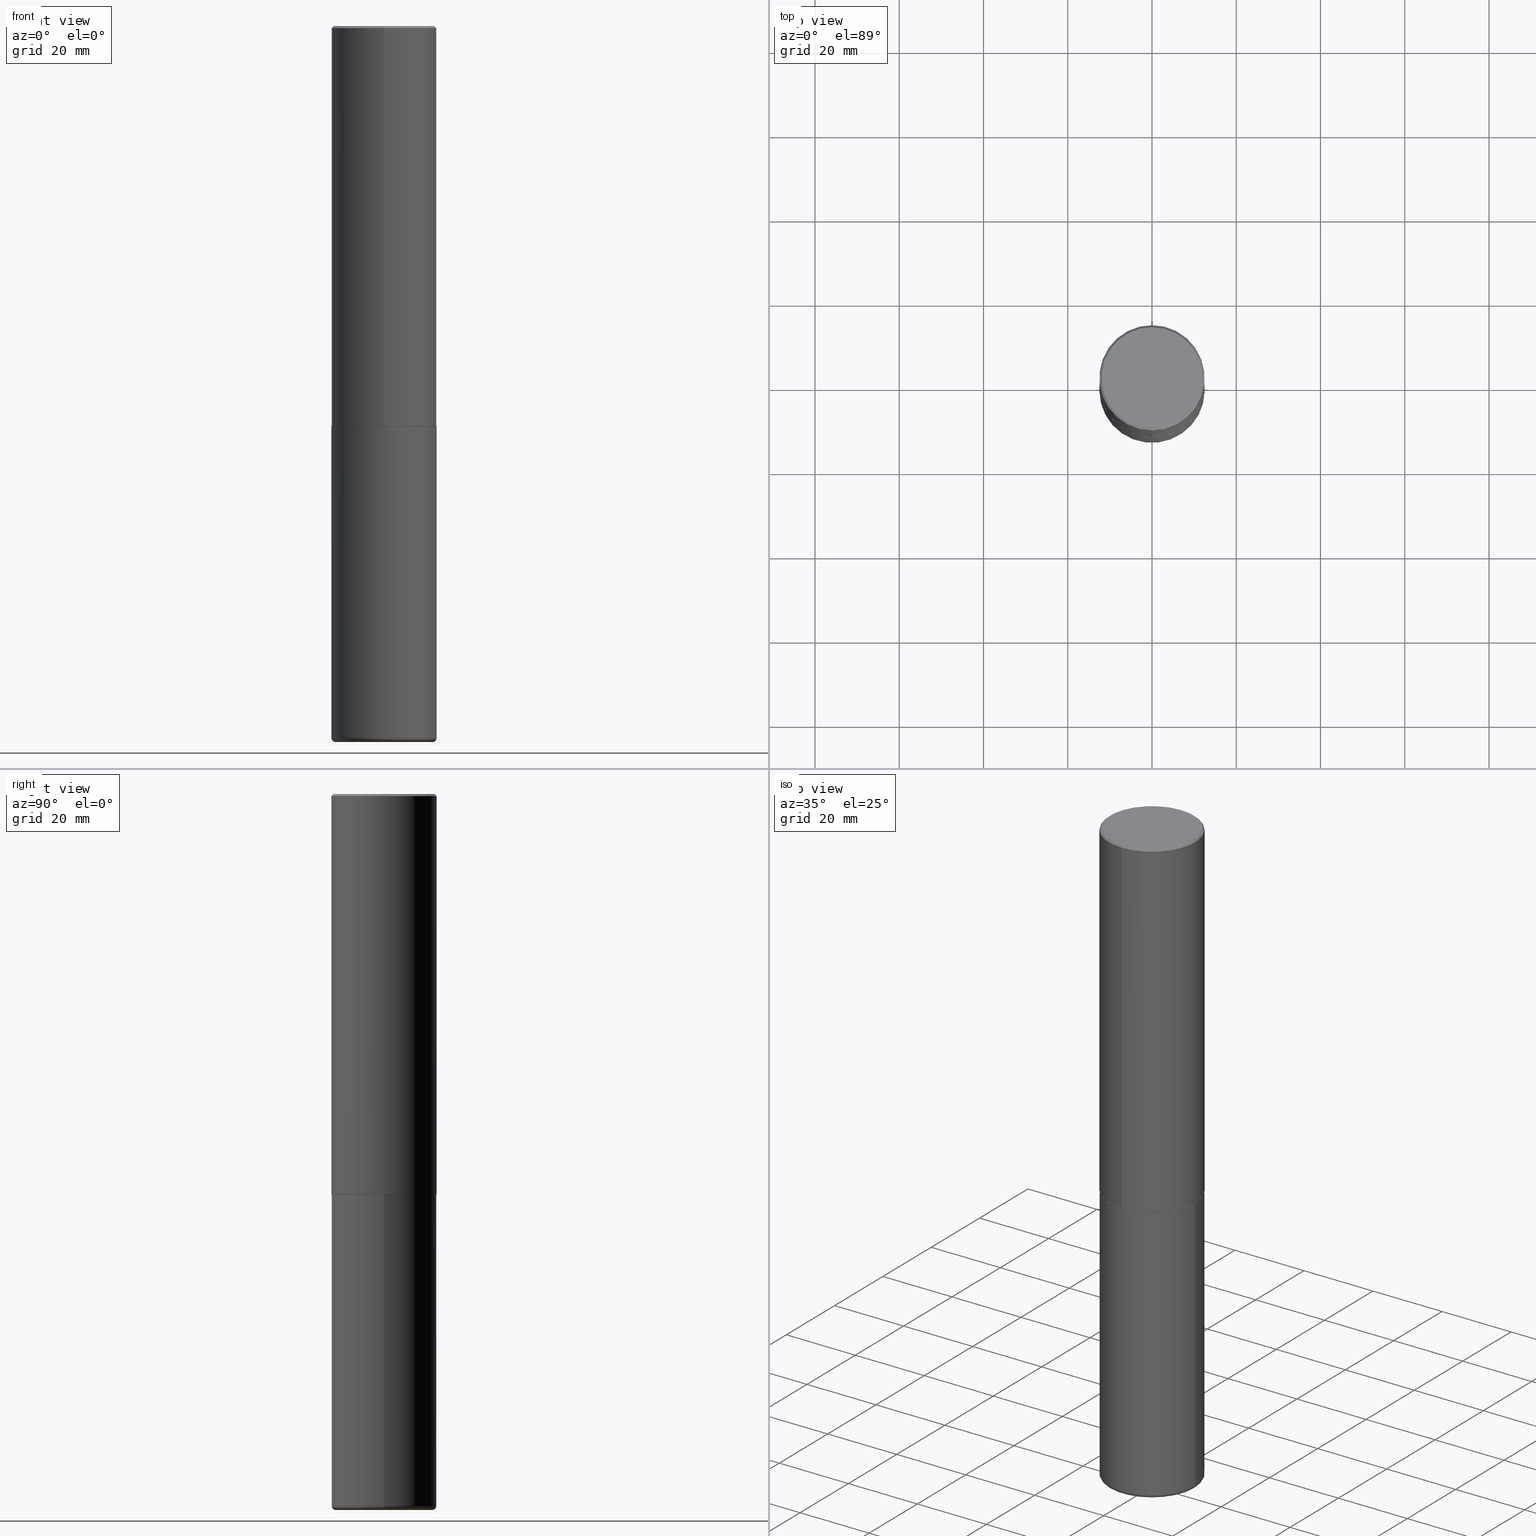
[diagram: canonical four-view strip — front | top / right | iso, engineering-drawing reading convention]
A machine part, canonical four-view strip (front | top / right | iso — engineering-drawing reading convention). The complete STEP part file that produces these views, byte-faithful:
ISO-10303-21;
HEADER;
FILE_DESCRIPTION (( 'STEP AP203' ),
    '1' );
FILE_NAME ('47615.STEP',
    '2024-03-06T19:42:53',
    ( '' ),
    ( '' ),
    'SwSTEP 2.0',
    'SolidWorks 2023',
    '' );
FILE_SCHEMA (( 'CONFIG_CONTROL_DESIGN' ));
ENDSEC;

DATA;
#1 = EDGE_LOOP ( 'NONE', ( #197, #109 ) ) ;
#2 = AXIS2_PLACEMENT_3D ( 'NONE', #338, #206, #210 ) ;
#3 = ADVANCED_FACE ( 'NONE', ( #333 ), #337, .T. ) ;
#4 = VECTOR ( 'NONE', #20, 39.37007874015748143 ) ;
#5 = VERTEX_POINT ( 'NONE', #120 ) ;
#6 = PERSON_AND_ORGANIZATION_ROLE ( 'creator' ) ;
#7 = ORIENTED_EDGE ( 'NONE', *, *, #178, .T. ) ;
#8 = PERSON_AND_ORGANIZATION_ROLE ( 'design_supplier' ) ;
#9 = APPROVAL ( #267, 'UNSPECIFIED' ) ;
#10 = CIRCLE ( 'NONE', #79, 0.4527499999999999858 ) ;
#11 = LOCAL_TIME ( 14, 42, 53.00000000000000000, #300 ) ;
#12 = CARTESIAN_POINT ( 'NONE',  ( 3.436665081823295777E-15, 0.4921499999999998098, -0.02000000000000182188 ) ) ;
#13 = ORIENTED_EDGE ( 'NONE', *, *, #135, .F. ) ;
#14 = LINE ( 'NONE', #175, #97 ) ;
#15 = ADVANCED_FACE ( 'NONE', ( #52 ), #245, .T. ) ;
#16 = ORIENTED_EDGE ( 'NONE', *, *, #55, .F. ) ;
#17 = AXIS2_PLACEMENT_3D ( 'NONE', #167, #94, #242 ) ;
#18 = ORGANIZATION ( 'UNSPECIFIED', 'UNSPECIFIED', '' ) ;
#19 = DIRECTION ( 'NONE',  ( -6.982962677686265922E-15, -1.000000000000000000, 3.337287582609300506E-15 ) ) ;
#20 = DIRECTION ( 'NONE',  ( 5.024295867790978808E-15, 0.7071067811869604647, 0.7071067811861345698 ) ) ;
#21 = DIRECTION ( 'NONE',  ( -6.982962677686265922E-15, -1.000000000000000000, 3.330506545156063496E-15 ) ) ;
#22 = CARTESIAN_POINT ( 'NONE',  ( -0.4921499999999999764, 3.496936074043332897E-15, -2.420853904668951509E-29 ) ) ;
#23 = VERTEX_POINT ( 'NONE', #371 ) ;
#24 = AXIS2_PLACEMENT_3D ( 'NONE', #122, #369, #85 ) ;
#25 = FACE_OUTER_BOUND ( 'NONE', #221, .T. ) ;
#26 = AXIS2_PLACEMENT_3D ( 'NONE', #92, #350, #33 ) ;
#27 = EDGE_CURVE ( 'NONE', #235, #66, #45, .T. ) ;
#28 = CARTESIAN_POINT ( 'NONE',  ( 0.000000000000000000, 0.000000000000000000, 0.000000000000000000 ) ) ;
#29 = MECHANICAL_CONTEXT ( 'NONE', #392, 'mechanical' ) ;
#30 = CARTESIAN_POINT ( 'NONE',  ( 3.366835455046432084E-15, 0.4721499999999996255, -1.426540264649568516E-15 ) ) ;
#31 = CIRCLE ( 'NONE', #17, 0.4911499999999999755 ) ;
#32 = CC_DESIGN_APPROVAL ( #9, ( #105 ) ) ;
#33 = DIRECTION ( 'NONE',  ( -6.982962677686265922E-15, -1.000000000000000000, 3.490754157143982946E-15 ) ) ;
#34 = ORIENTED_EDGE ( 'NONE', *, *, #36, .F. ) ;
#35 = EDGE_LOOP ( 'NONE', ( #391, #73 ) ) ;
#36 = EDGE_CURVE ( 'NONE', #66, #235, #104, .T. ) ;
#37 = APPROVAL_STATUS ( 'not_yet_approved' ) ;
#38 = VERTEX_POINT ( 'NONE', #376 ) ;
#39 = VECTOR ( 'NONE', #86, 39.37007874015748143 ) ;
#40 = APPROVAL_PERSON_ORGANIZATION ( #141, #87, #106 ) ;
#41 = VERTEX_POINT ( 'NONE', #252 ) ;
#42 = CC_DESIGN_DATE_AND_TIME_ASSIGNMENT ( #201, #112, ( #105 ) ) ;
#43 = PERSON_AND_ORGANIZATION ( #205, #18 ) ;
#44 = EDGE_LOOP ( 'NONE', ( #172, #13, #388, #401 ) ) ;
#45 = CIRCLE ( 'NONE', #199, 0.4921500000000003650 ) ;
#46 = LOCAL_TIME ( 14, 42, 53.00000000000000000, #297 ) ;
#47 = ADVANCED_FACE ( 'NONE', ( #191 ), #96, .F. ) ;
#48 = LINE ( 'NONE', #82, #39 ) ;
#49 = CARTESIAN_POINT ( 'NONE',  ( 1.636727817291650190E-28, -2.336813545274329412E-14, -6.692900000000000738 ) ) ;
#50 = DIRECTION ( 'NONE',  ( -2.445468806185136597E-29, 3.491481338843145583E-15, 1.000000000000000000 ) ) ;
#51 = CARTESIAN_POINT ( 'NONE',  ( 0.4527499999999999858, -2.652967180506574989E-14, -6.692900000000000738 ) ) ;
#52 = FACE_OUTER_BOUND ( 'NONE', #230, .T. ) ;
#53 = CIRCLE ( 'NONE', #2, 0.4921500000000000319 ) ;
#54 = LINE ( 'NONE', #183, #4 ) ;
#55 = EDGE_CURVE ( 'NONE', #5, #378, #239, .T. ) ;
#56 = DIRECTION ( 'NONE',  ( -2.445976594451651952E-29, 3.490754157143982552E-15, 1.000000000000000000 ) ) ;
#57 =( NAMED_UNIT ( * ) SI_UNIT ( $, .STERADIAN. ) SOLID_ANGLE_UNIT ( ) );
#58 = EDGE_CURVE ( 'NONE', #170, #269, #158, .T. ) ;
#59 = AXIS2_PLACEMENT_3D ( 'NONE', #381, #192, #61 ) ;
#60 = DIRECTION ( 'NONE',  ( 2.438088387897960049E-29, -3.491481338843145188E-15, -1.000000000000000000 ) ) ;
#61 = DIRECTION ( 'NONE',  ( -6.982962677686265922E-15, -1.000000000000000000, 3.486624039460257331E-15 ) ) ;
#62 = EDGE_CURVE ( 'NONE', #41, #168, #193, .T. ) ;
#63 = CARTESIAN_POINT ( 'NONE',  ( 3.493383360364624690E-15, 0.4911499999999869304, -3.740100000000001312 ) ) ;
#64 = VECTOR ( 'NONE', #319, 39.37007874015748854 ) ;
#65 = DIRECTION ( 'NONE',  ( -2.445976594451651952E-29, 3.490754157143982552E-15, 1.000000000000000000 ) ) ;
#66 = VERTEX_POINT ( 'NONE', #102 ) ;
#67 = ORIENTED_EDGE ( 'NONE', *, *, #68, .F. ) ;
#68 = EDGE_CURVE ( 'NONE', #329, #38, #70, .T. ) ;
#69 = EDGE_LOOP ( 'NONE', ( #303, #75, #143, #336 ) ) ;
#70 = CIRCLE ( 'NONE', #293, 0.4911499999999999755 ) ;
#71 = APPROVAL_PERSON_ORGANIZATION ( #265, #9, #203 ) ;
#72 = PERSON_AND_ORGANIZATION ( #205, #18 ) ;
#73 = ORIENTED_EDGE ( 'NONE', *, *, #178, .F. ) ;
#74 = PERSON_AND_ORGANIZATION ( #205, #18 ) ;
#75 = ORIENTED_EDGE ( 'NONE', *, *, #62, .T. ) ;
#76 = DIMENSIONAL_EXPONENTS ( 1.000000000000000000, 0.000000000000000000, 0.000000000000000000, 0.000000000000000000, 0.000000000000000000, 0.000000000000000000, 0.000000000000000000 ) ;
#77 = CARTESIAN_POINT ( 'NONE',  ( -0.4527499999999999858, -2.001358885183902141E-14, -6.653500000000000192 ) ) ;
#78 = MANIFOLD_SOLID_BREP ( 'Body-Move/Copy2[2]', #174 ) ;
#79 = AXIS2_PLACEMENT_3D ( 'NONE', #49, #177, #301 ) ;
#80 = VECTOR ( 'NONE', #95, 39.37007874015748143 ) ;
#81 = DIRECTION ( 'NONE',  ( -2.445468806185136597E-29, 3.491481338843145583E-15, 1.000000000000000000 ) ) ;
#82 = CARTESIAN_POINT ( 'NONE',  ( -3.436665081823296565E-15, -0.4921500000000000874, 1.717974658438411319E-15 ) ) ;
#83 = DIRECTION ( 'NONE',  ( -2.445468806185136877E-29, 3.491481338843145188E-15, 1.000000000000000000 ) ) ;
#84 = MANIFOLD_SOLID_BREP ( 'Body-Move/Copy2[1]', #373 ) ;
#85 = DIRECTION ( 'NONE',  ( -6.982962677686265922E-15, -1.000000000000000000, 3.490754157143982946E-15 ) ) ;
#86 = DIRECTION ( 'NONE',  ( -2.445976594451651672E-29, 3.490754157143982552E-15, 1.000000000000000000 ) ) ;
#87 = APPROVAL ( #144, 'UNSPECIFIED' ) ;
#88 = CARTESIAN_POINT ( 'NONE',  ( 9.145751084314172604E-29, -1.305227886897706845E-14, -3.739100000000000534 ) ) ;
#89 = CIRCLE ( 'NONE', #317, 0.03940000000000040692 ) ;
#90 = FACE_OUTER_BOUND ( 'NONE', #35, .T. ) ;
#91 = EDGE_LOOP ( 'NONE', ( #316, #324, #321, #351 ) ) ;
#92 = CARTESIAN_POINT ( 'NONE',  ( -5.420756467185317189E-45, 7.736185299407739239E-31, 2.216193106459615290E-16 ) ) ;
#93 = EDGE_LOOP ( 'NONE', ( #148, #113, #365, #355 ) ) ;
#94 = DIRECTION ( 'NONE',  ( -2.445976594451651952E-29, 3.490754157143982552E-15, 1.000000000000000000 ) ) ;
#95 = DIRECTION ( 'NONE',  ( -2.445976594451651672E-29, 3.490754157143982552E-15, 1.000000000000000000 ) ) ;
#96 = PLANE ( 'NONE',  #151 ) ;
#97 = VECTOR ( 'NONE', #372, 39.37007874015748143 ) ;
#98 = CC_DESIGN_PERSON_AND_ORGANIZATION_ASSIGNMENT ( #43, #171, ( #325 ) ) ;
#99 = PLANE ( 'NONE',  #164 ) ;
#100 = EDGE_CURVE ( 'NONE', #38, #329, #31, .T. ) ;
#101 = CYLINDRICAL_SURFACE ( 'NONE', #352, 0.4921500000000000874 ) ;
#102 = CARTESIAN_POINT ( 'NONE',  ( -3.436665081823207030E-15, -0.4921500000000134101, -3.739099999999998758 ) ) ;
#103 = APPROVAL_ROLE ( '' ) ;
#104 = CIRCLE ( 'NONE', #331, 0.4921500000000003650 ) ;
#105 = SECURITY_CLASSIFICATION ( '', '', #384 ) ;
#106 = APPROVAL_ROLE ( '' ) ;
#107 = ORIENTED_EDGE ( 'NONE', *, *, #412, .T. ) ;
#108 = PERSON_AND_ORGANIZATION ( #205, #18 ) ;
#109 = ORIENTED_EDGE ( 'NONE', *, *, #299, .T. ) ;
#110 = ORIENTED_EDGE ( 'NONE', *, *, #307, .T. ) ;
#111 = AXIS2_PLACEMENT_3D ( 'NONE', #241, #81, #124 ) ;
#112 = DATE_TIME_ROLE ( 'classification_date' ) ;
#113 = ORIENTED_EDGE ( 'NONE', *, *, #208, .T. ) ;
#114 = UNCERTAINTY_MEASURE_WITH_UNIT (LENGTH_MEASURE( 1.000000000000000082E-05 ), #132, 'distance_accuracy_value', 'NONE');
#115 = PRODUCT_RELATED_PRODUCT_CATEGORY ( 'detail', '', ( #325 ) ) ;
#116 = ORIENTED_EDGE ( 'NONE', *, *, #173, .T. ) ;
#117 = CARTESIAN_POINT ( 'NONE',  ( 4.891953188903329688E-31, -6.981508314288001687E-17, -0.02000000000000010797 ) ) ;
#118 = AXIS2_PLACEMENT_3D ( 'NONE', #335, #238, #370 ) ;
#119 = DIRECTION ( 'NONE',  ( -2.445976594451651952E-29, 3.490754157143982552E-15, 1.000000000000000000 ) ) ;
#120 = CARTESIAN_POINT ( 'NONE',  ( 0.4921500000000002539, -2.666723616981616910E-14, -6.653500000000000192 ) ) ;
#121 = ADVANCED_FACE ( 'NONE', ( #236 ), #187, .T. ) ;
#122 = CARTESIAN_POINT ( 'NONE',  ( -5.420756467185317189E-45, 7.736185299407739239E-31, 2.216193106459615290E-16 ) ) ;
#123 = DIRECTION ( 'NONE',  ( 1.000000000000000000, -6.982962677686265922E-15, 0.000000000000000000 ) ) ;
#124 = DIRECTION ( 'NONE',  ( 1.000000000000000000, -6.982962677686265922E-15, 4.876176775795935793E-29 ) ) ;
#125 = CARTESIAN_POINT ( 'NONE',  ( 5.087199727460723535E-29, -3.952184980882992196E-14, -6.692899999999999849 ) ) ;
#126 = CIRCLE ( 'NONE', #311, 0.03940000000000040692 ) ;
#127 = AXIS2_PLACEMENT_3D ( 'NONE', #159, #260, #408 ) ;
#128 = DIRECTION ( 'NONE',  ( 1.000000000000000000, -6.982962677686268288E-15, 4.883557194083113462E-29 ) ) ;
#129 = DIRECTION ( 'NONE',  ( -2.445976594451651952E-29, 3.490754157143982552E-15, 1.000000000000000000 ) ) ;
#130 = APPROVAL ( #37, 'UNSPECIFIED' ) ;
#131 = DIRECTION ( 'NONE',  ( 0.000000000000000000, 0.000000000000000000, 1.000000000000000000 ) ) ;
#132 =( CONVERSION_BASED_UNIT ( 'INCH', #377 ) LENGTH_UNIT ( ) NAMED_UNIT ( #76 ) );
#133 = LOCAL_TIME ( 14, 42, 53.00000000000000000, #387 ) ;
#134 = DIRECTION ( 'NONE',  ( 6.982962677686265922E-15, 1.000000000000000000, -3.486624039460257331E-15 ) ) ;
#135 = EDGE_CURVE ( 'NONE', #357, #41, #207, .T. ) ;
#136 = CALENDAR_DATE ( 2024, 6, 3 ) ;
#137 = EDGE_CURVE ( 'NONE', #378, #5, #53, .T. ) ;
#138 = ORIENTED_EDGE ( 'NONE', *, *, #58, .T. ) ;
#139 = AXIS2_PLACEMENT_3D ( 'NONE', #287, #416, #134 ) ;
#140 = ADVANCED_FACE ( 'NONE', ( #180 ), #395, .T. ) ;
#141 = PERSON_AND_ORGANIZATION ( #205, #18 ) ;
#142 = ORIENTED_EDGE ( 'NONE', *, *, #216, .T. ) ;
#143 = ORIENTED_EDGE ( 'NONE', *, *, #150, .T. ) ;
#144 = APPROVAL_STATUS ( 'not_yet_approved' ) ;
#145 = VERTEX_POINT ( 'NONE', #212 ) ;
#146 = CIRCLE ( 'NONE', #26, 0.4721499999999996255 ) ;
#147 = DIRECTION ( 'NONE',  ( -1.000000000000000000, 6.982962677686265922E-15, -4.876176775795935793E-29 ) ) ;
#148 = ORIENTED_EDGE ( 'NONE', *, *, #55, .T. ) ;
#149 = DIRECTION ( 'NONE',  ( 2.445976594451651952E-29, -3.490754157143982552E-15, -1.000000000000000000 ) ) ;
#150 = EDGE_CURVE ( 'NONE', #168, #23, #262, .T. ) ;
#151 = AXIS2_PLACEMENT_3D ( 'NONE', #160, #60, #161 ) ;
#152 = AXIS2_PLACEMENT_3D ( 'NONE', #258, #131, #346 ) ;
#153 = ORIENTED_EDGE ( 'NONE', *, *, #27, .F. ) ;
#154 = CARTESIAN_POINT ( 'NONE',  ( 0.4921499999999999764, -1.649515443723054663E-14, -3.740100000000000424 ) ) ;
#155 = CARTESIAN_POINT ( 'NONE',  ( 3.496936074043380229E-15, 0.4921499999999873198, -3.739100000000002311 ) ) ;
#156 = CARTESIAN_POINT ( 'NONE',  ( 9.145751084314172604E-29, -1.305227886897706845E-14, -3.739100000000000534 ) ) ;
#157 = CARTESIAN_POINT ( 'NONE',  ( 9.146297882013029477E-29, -1.305848935540725085E-14, -3.740100000000000424 ) ) ;
#158 = CIRCLE ( 'NONE', #385, 0.4527499999999999858 ) ;
#159 = CARTESIAN_POINT ( 'NONE',  ( 9.148197060908621523E-29, -1.305576962313420868E-14, -3.740099999999999980 ) ) ;
#160 = CARTESIAN_POINT ( 'NONE',  ( 9.146297882013029477E-29, -1.305848935540725085E-14, -3.740100000000000424 ) ) ;
#161 = DIRECTION ( 'NONE',  ( -1.000000000000000000, 6.982962677686265922E-15, -4.876176775795935793E-29 ) ) ;
#162 = AXIS2_PLACEMENT_3D ( 'NONE', #284, #413, #286 ) ;
#163 = DIRECTION ( 'NONE',  ( 6.982962677686265922E-15, 1.000000000000000000, -3.490754157143982552E-15 ) ) ;
#164 = AXIS2_PLACEMENT_3D ( 'NONE', #217, #165, #343 ) ;
#165 = DIRECTION ( 'NONE',  ( -2.445976594451651392E-29, 3.490754157143982552E-15, 1.000000000000000000 ) ) ;
#166 = ORIENTED_EDGE ( 'NONE', *, *, #268, .T. ) ;
#167 = CARTESIAN_POINT ( 'NONE',  ( 9.148197060908621523E-29, -1.305576962313420868E-14, -3.740099999999999980 ) ) ;
#168 = VERTEX_POINT ( 'NONE', #400 ) ;
#169 = PERSON_AND_ORGANIZATION ( #205, #18 ) ;
#170 = VERTEX_POINT ( 'NONE', #51 ) ;
#171 = PERSON_AND_ORGANIZATION_ROLE ( 'design_owner' ) ;
#172 = ORIENTED_EDGE ( 'NONE', *, *, #62, .F. ) ;
#173 = EDGE_CURVE ( 'NONE', #170, #5, #89, .T. ) ;
#174 = CLOSED_SHELL ( 'NONE', ( #279, #405, #389, #253, #296, #398, #322, #375 ) ) ;
#175 = CARTESIAN_POINT ( 'NONE',  ( -3.429682119145517860E-15, -0.4911500000000130206, -3.740099999999998204 ) ) ;
#176 = EDGE_CURVE ( 'NONE', #5, #288, #308, .T. ) ;
#177 = DIRECTION ( 'NONE',  ( -2.445468806185136597E-29, 3.491481338843145583E-15, 1.000000000000000000 ) ) ;
#178 = EDGE_CURVE ( 'NONE', #269, #170, #10, .T. ) ;
#179 = EDGE_CURVE ( 'NONE', #269, #378, #126, .T. ) ;
#180 = FACE_OUTER_BOUND ( 'NONE', #379, .T. ) ;
#181 = CC_DESIGN_SECURITY_CLASSIFICATION ( #105, ( #276 ) ) ;
#182 = CARTESIAN_POINT ( 'NONE',  ( 0.000000000000000000, 0.000000000000000000, 0.000000000000000000 ) ) ;
#183 = CARTESIAN_POINT ( 'NONE',  ( 3.489830646685823002E-15, 0.4911499999999869304, -3.740100000000001312 ) ) ;
#184 = DIRECTION ( 'NONE',  ( 1.000000000000000000, -6.982962677686265922E-15, 4.876176775795935793E-29 ) ) ;
#185 = DIRECTION ( 'NONE',  ( -6.982962677686266711E-15, -1.000000000000000000, 3.491481338843145583E-15 ) ) ;
#186 = CARTESIAN_POINT ( 'NONE',  ( 3.496936074043333291E-15, 0.4921500000000000874, -1.717974658438411319E-15 ) ) ;
#187 = TOROIDAL_SURFACE ( 'NONE', #358, 0.4527499999999999858, 0.03940000000000037222 ) ;
#188 =( GEOMETRIC_REPRESENTATION_CONTEXT ( 3 ) GLOBAL_UNCERTAINTY_ASSIGNED_CONTEXT ( ( #114 ) ) GLOBAL_UNIT_ASSIGNED_CONTEXT ( ( #132, #374, #57 ) ) REPRESENTATION_CONTEXT ( 'NONE', 'WORKASPACE' ) );
#189 = FACE_OUTER_BOUND ( 'NONE', #69, .T. ) ;
#190 = EDGE_LOOP ( 'NONE', ( #204, #67 ) ) ;
#191 = FACE_OUTER_BOUND ( 'NONE', #1, .T. ) ;
#192 = DIRECTION ( 'NONE',  ( -2.445976594451651952E-29, 3.490754157143982552E-15, 1.000000000000000000 ) ) ;
#193 = LINE ( 'NONE', #415, #64 ) ;
#194 = FACE_OUTER_BOUND ( 'NONE', #190, .T. ) ;
#195 = DIRECTION ( 'NONE',  ( -6.982962677686265922E-15, -1.000000000000000000, 3.337287582609300506E-15 ) ) ;
#196 = DATE_AND_TIME ( #136, #359 ) ;
#197 = ORIENTED_EDGE ( 'NONE', *, *, #218, .T. ) ;
#198 = APPLICATION_PROTOCOL_DEFINITION ( 'international standard', 'config_control_design', 1994, #224 ) ;
#199 = AXIS2_PLACEMENT_3D ( 'NONE', #88, #214, #21 ) ;
#200 = AXIS2_PLACEMENT_3D ( 'NONE', #310, #313, #414 ) ;
#201 = DATE_AND_TIME ( #328, #133 ) ;
#202 = EDGE_CURVE ( 'NONE', #66, #168, #48, .T. ) ;
#203 = APPROVAL_ROLE ( '' ) ;
#204 = ORIENTED_EDGE ( 'NONE', *, *, #100, .F. ) ;
#205 = PERSON ( 'UNSPECIFIED', 'UNSPECIFIED', 'UNSPECIFIED', ('UNSPECIFIED'), ('UNSPECIFIED'), ('UNSPECIFIED') ) ;
#206 = DIRECTION ( 'NONE',  ( -2.445468806185136597E-29, 3.491481338843145583E-15, 1.000000000000000000 ) ) ;
#207 = CIRCLE ( 'NONE', #24, 0.4721499999999996255 ) ;
#208 = EDGE_CURVE ( 'NONE', #378, #145, #403, .T. ) ;
#209 = DIRECTION ( 'NONE',  ( -2.445468806185136597E-29, 3.491481338843145583E-15, 1.000000000000000000 ) ) ;
#210 = DIRECTION ( 'NONE',  ( 1.000000000000000000, -6.982962677686265133E-15, 0.000000000000000000 ) ) ;
#211 = CARTESIAN_POINT ( 'NONE',  ( 1.627092670195280843E-28, -2.323057108799287175E-14, -6.653500000000000192 ) ) ;
#212 = CARTESIAN_POINT ( 'NONE',  ( -0.4921499999999999764, -1.464759414765672840E-14, -3.740100000000000424 ) ) ;
#213 = CARTESIAN_POINT ( 'NONE',  ( 1.627092670195280843E-28, -2.323057108799287175E-14, -6.653500000000000192 ) ) ;
#214 = DIRECTION ( 'NONE',  ( -2.445976594451651952E-29, 3.490754157143982552E-15, 1.000000000000000000 ) ) ;
#215 = CYLINDRICAL_SURFACE ( 'NONE', #240, 0.4921500000000000874 ) ;
#216 = EDGE_CURVE ( 'NONE', #38, #66, #14, .T. ) ;
#217 = CARTESIAN_POINT ( 'NONE',  ( 9.148197060908621523E-29, -1.305576962313420868E-14, -3.740099999999999980 ) ) ;
#218 = EDGE_CURVE ( 'NONE', #288, #145, #326, .T. ) ;
#219 = CONICAL_SURFACE ( 'NONE', #263, 0.4921499999999999209, 0.7853981633974467247 ) ;
#220 = CARTESIAN_POINT ( 'NONE',  ( 3.297005828269567997E-15, 0.4721499999999996255, -1.537349919972549256E-15 ) ) ;
#221 = EDGE_LOOP ( 'NONE', ( #363, #110, #292, #361 ) ) ;
#222 = DIRECTION ( 'NONE',  ( -6.982962677686265922E-15, -1.000000000000000000, 3.490754157143982552E-15 ) ) ;
#223 = CARTESIAN_POINT ( 'NONE',  ( 9.148197060908621523E-29, -1.305576962313420868E-14, -3.740099999999999980 ) ) ;
#224 = APPLICATION_CONTEXT ( 'configuration controlled 3d designs of mechanical parts and assemblies' ) ;
#225 = CC_DESIGN_DATE_AND_TIME_ASSIGNMENT ( #323, #291, ( #314 ) ) ;
#226 = PERSON_AND_ORGANIZATION_ROLE ( 'classification_officer' ) ;
#227 = EDGE_LOOP ( 'NONE', ( #353, #166, #34, #237 ) ) ;
#228 = PRODUCT_DEFINITION_SHAPE ( 'NONE', 'NONE',  #314 ) ;
#229 = CALENDAR_DATE ( 2024, 6, 3 ) ;
#230 = EDGE_LOOP ( 'NONE', ( #417, #349, #409, #259 ) ) ;
#231 = PERSON_AND_ORGANIZATION_ROLE ( 'creator' ) ;
#232 = EDGE_LOOP ( 'NONE', ( #411, #283, #142, #153 ) ) ;
#233 = CC_DESIGN_PERSON_AND_ORGANIZATION_ASSIGNMENT ( #74, #231, ( #276 ) ) ;
#234 = DATE_AND_TIME ( #264, #11 ) ;
#235 = VERTEX_POINT ( 'NONE', #155 ) ;
#236 = FACE_OUTER_BOUND ( 'NONE', #249, .T. ) ;
#237 = ORIENTED_EDGE ( 'NONE', *, *, #216, .F. ) ;
#238 = DIRECTION ( 'NONE',  ( -2.445976594451651952E-29, 3.490754157143982552E-15, 1.000000000000000000 ) ) ;
#239 = CIRCLE ( 'NONE', #162, 0.4921500000000000319 ) ;
#240 = AXIS2_PLACEMENT_3D ( 'NONE', #342, #56, #281 ) ;
#241 = CARTESIAN_POINT ( 'NONE',  ( 0.000000000000000000, 0.000000000000000000, 0.000000000000000000 ) ) ;
#242 = DIRECTION ( 'NONE',  ( -6.982962677686265922E-15, -1.000000000000000000, 3.337287582609300506E-15 ) ) ;
#243 = DIRECTION ( 'NONE',  ( -2.445468806185136877E-29, 3.491481338843145188E-15, 1.000000000000000000 ) ) ;
#244 = DIRECTION ( 'NONE',  ( 6.982962677686265922E-15, 1.000000000000000000, -3.486624039460257331E-15 ) ) ;
#245 = CYLINDRICAL_SURFACE ( 'NONE', #340, 0.4921499999999999764 ) ;
#246 = FACE_OUTER_BOUND ( 'NONE', #91, .T. ) ;
#247 = DESIGN_CONTEXT ( 'detailed design', #224, 'design' ) ;
#248 = CONICAL_SURFACE ( 'NONE', #341, 0.4911499999999999755, 0.7853981633980288146 ) ;
#249 = EDGE_LOOP ( 'NONE', ( #290, #7, #116, #418 ) ) ;
#250 = CARTESIAN_POINT ( 'NONE',  ( 1.636727817291650190E-28, -2.336813545274329412E-14, -6.692900000000000738 ) ) ;
#251 = EDGE_CURVE ( 'NONE', #357, #23, #309, .T. ) ;
#252 = CARTESIAN_POINT ( 'NONE',  ( -3.307789109625541747E-15, -0.4721499999999996255, 1.869778885941491673E-15 ) ) ;
#253 = ADVANCED_FACE ( 'NONE', ( #304 ), #219, .T. ) ;
#254 =( LENGTH_UNIT ( ) NAMED_UNIT ( * ) SI_UNIT ( $, .METRE. ) );
#255 = ORIENTED_EDGE ( 'NONE', *, *, #179, .T. ) ;
#256 = VECTOR ( 'NONE', #305, 39.37007874015748143 ) ;
#257 = APPROVAL_PERSON_ORGANIZATION ( #108, #130, #103 ) ;
#258 = CARTESIAN_POINT ( 'NONE',  ( 0.000000000000000000, 0.000000000000000000, 0.000000000000000000 ) ) ;
#259 = ORIENTED_EDGE ( 'NONE', *, *, #299, .F. ) ;
#260 = DIRECTION ( 'NONE',  ( -2.445976594451651952E-29, 3.490754157143982552E-15, 1.000000000000000000 ) ) ;
#261 = ADVANCED_BREP_SHAPE_REPRESENTATION ( '47615', ( #84, #78, #152 ), #188 ) ;
#262 = CIRCLE ( 'NONE', #118, 0.4921499999999999209 ) ;
#263 = AXIS2_PLACEMENT_3D ( 'NONE', #117, #149, #244 ) ;
#264 = CALENDAR_DATE ( 2024, 6, 3 ) ;
#265 = PERSON_AND_ORGANIZATION ( #205, #18 ) ;
#266 = ADVANCED_FACE ( 'NONE', ( #90 ), #274, .T. ) ;
#267 = APPROVAL_STATUS ( 'not_yet_approved' ) ;
#268 = EDGE_CURVE ( 'NONE', #329, #235, #54, .T. ) ;
#269 = VERTEX_POINT ( 'NONE', #367 ) ;
#270 = CALENDAR_DATE ( 2024, 6, 3 ) ;
#271 = AXIS2_PLACEMENT_3D ( 'NONE', #213, #334, #128 ) ;
#272 = AXIS2_PLACEMENT_3D ( 'NONE', #125, #339, #147 ) ;
#273 = CARTESIAN_POINT ( 'NONE',  ( 9.148197060908621523E-29, -1.305576962313420868E-14, -3.740099999999999980 ) ) ;
#274 = PLANE ( 'NONE',  #272 ) ;
#275 = VECTOR ( 'NONE', #243, 39.37007874015748143 ) ;
#276 = PRODUCT_DEFINITION_FORMATION_WITH_SPECIFIED_SOURCE ( 'ANY', '', #325, .NOT_KNOWN. ) ;
#277 = DIRECTION ( 'NONE',  ( 7.105427357601001859E-15, 1.000000000000000000, -3.491481338843145583E-15 ) ) ;
#278 = CARTESIAN_POINT ( 'NONE',  ( 0.4921499999999999764, -3.436665081823295777E-15, 2.399810400207969603E-29 ) ) ;
#279 = ADVANCED_FACE ( 'NONE', ( #406 ), #248, .T. ) ;
#280 = DIRECTION ( 'NONE',  ( -2.445976594451651952E-29, 3.490754157143982552E-15, 1.000000000000000000 ) ) ;
#281 = DIRECTION ( 'NONE',  ( -6.982962677686265922E-15, -1.000000000000000000, 3.490754157143982552E-15 ) ) ;
#282 = PLANE ( 'NONE',  #294 ) ;
#283 = ORIENTED_EDGE ( 'NONE', *, *, #68, .T. ) ;
#284 = CARTESIAN_POINT ( 'NONE',  ( 1.627092670195280843E-28, -2.323057108799287175E-14, -6.653500000000000192 ) ) ;
#285 = FACE_OUTER_BOUND ( 'NONE', #232, .T. ) ;
#286 = DIRECTION ( 'NONE',  ( 1.000000000000000000, -6.982962677686265133E-15, 0.000000000000000000 ) ) ;
#287 = CARTESIAN_POINT ( 'NONE',  ( 4.891953188903329688E-31, -6.981508314288001687E-17, -0.02000000000000010797 ) ) ;
#288 = VERTEX_POINT ( 'NONE', #154 ) ;
#289 = DIRECTION ( 'NONE',  ( -2.445468806185136597E-29, 3.491481338843145583E-15, 1.000000000000000000 ) ) ;
#290 = ORIENTED_EDGE ( 'NONE', *, *, #179, .F. ) ;
#291 = DATE_TIME_ROLE ( 'creation_date' ) ;
#292 = ORIENTED_EDGE ( 'NONE', *, *, #150, .F. ) ;
#293 = AXIS2_PLACEMENT_3D ( 'NONE', #223, #65, #195 ) ;
#294 = AXIS2_PLACEMENT_3D ( 'NONE', #220, #315, #163 ) ;
#295 = COORDINATED_UNIVERSAL_TIME_OFFSET ( 5, 0, .BEHIND. ) ;
#296 = ADVANCED_FACE ( 'NONE', ( #246 ), #215, .T. ) ;
#297 = COORDINATED_UNIVERSAL_TIME_OFFSET ( 5, 0, .BEHIND. ) ;
#298 = EDGE_LOOP ( 'NONE', ( #404, #107 ) ) ;
#299 = EDGE_CURVE ( 'NONE', #145, #288, #366, .T. ) ;
#300 = COORDINATED_UNIVERSAL_TIME_OFFSET ( 5, 0, .BEHIND. ) ;
#301 = DIRECTION ( 'NONE',  ( 1.000000000000000000, -6.982962677686269077E-15, 0.000000000000000000 ) ) ;
#302 = CC_DESIGN_PERSON_AND_ORGANIZATION_ASSIGNMENT ( #72, #226, ( #105 ) ) ;
#303 = ORIENTED_EDGE ( 'NONE', *, *, #412, .F. ) ;
#304 = FACE_OUTER_BOUND ( 'NONE', #44, .T. ) ;
#305 = DIRECTION ( 'NONE',  ( 4.937700262164540154E-15, 0.7071067811865440200, -0.7071067811865511255 ) ) ;
#306 = CC_DESIGN_APPROVAL ( #130, ( #276 ) ) ;
#307 = EDGE_CURVE ( 'NONE', #235, #23, #382, .T. ) ;
#308 = LINE ( 'NONE', #278, #345 ) ;
#309 = LINE ( 'NONE', #12, #256 ) ;
#310 = CARTESIAN_POINT ( 'NONE',  ( 9.146297882013029477E-29, -1.305848935540725085E-14, -3.740100000000000424 ) ) ;
#311 = AXIS2_PLACEMENT_3D ( 'NONE', #77, #277, #368 ) ;
#312 = CIRCLE ( 'NONE', #59, 0.4921499999999999209 ) ;
#313 = DIRECTION ( 'NONE',  ( -2.445468806185136597E-29, 3.491481338843145583E-15, 1.000000000000000000 ) ) ;
#314 = PRODUCT_DEFINITION ( 'UNKNOWN', '', #276, #247 ) ;
#315 = DIRECTION ( 'NONE',  ( 2.445976594451651392E-29, -3.490754157143982552E-15, -1.000000000000000000 ) ) ;
#316 = ORIENTED_EDGE ( 'NONE', *, *, #307, .F. ) ;
#317 = AXIS2_PLACEMENT_3D ( 'NONE', #332, #185, #364 ) ;
#318 = CC_DESIGN_APPROVAL ( #87, ( #314 ) ) ;
#319 = DIRECTION ( 'NONE',  ( -4.851104656540955597E-15, -0.7071067811865487940, -0.7071067811865461294 ) ) ;
#320 = FACE_OUTER_BOUND ( 'NONE', #298, .T. ) ;
#321 = ORIENTED_EDGE ( 'NONE', *, *, #202, .T. ) ;
#322 = ADVANCED_FACE ( 'NONE', ( #194 ), #99, .F. ) ;
#323 = DATE_AND_TIME ( #270, #327 ) ;
#324 = ORIENTED_EDGE ( 'NONE', *, *, #27, .T. ) ;
#325 = PRODUCT ( '47615', '47615', '', ( #29 ) ) ;
#326 = CIRCLE ( 'NONE', #380, 0.4921499999999999764 ) ;
#327 = LOCAL_TIME ( 14, 42, 53.00000000000000000, #390 ) ;
#328 = CALENDAR_DATE ( 2024, 6, 3 ) ;
#329 = VERTEX_POINT ( 'NONE', #63 ) ;
#330 = DATE_AND_TIME ( #229, #46 ) ;
#331 = AXIS2_PLACEMENT_3D ( 'NONE', #156, #280, #347 ) ;
#332 = CARTESIAN_POINT ( 'NONE',  ( 0.4527499999999999858, -2.639210744031533067E-14, -6.653500000000000192 ) ) ;
#333 = FACE_OUTER_BOUND ( 'NONE', #93, .T. ) ;
#334 = DIRECTION ( 'NONE',  ( -2.445468806185136597E-29, 3.491481338843145583E-15, 1.000000000000000000 ) ) ;
#335 = CARTESIAN_POINT ( 'NONE',  ( 4.891953188903329688E-31, -6.981508314288001687E-17, -0.02000000000000010797 ) ) ;
#336 = ORIENTED_EDGE ( 'NONE', *, *, #251, .F. ) ;
#337 = CYLINDRICAL_SURFACE ( 'NONE', #111, 0.4921499999999999764 ) ;
#338 = CARTESIAN_POINT ( 'NONE',  ( 1.627092670195280843E-28, -2.323057108799287175E-14, -6.653500000000000192 ) ) ;
#339 = DIRECTION ( 'NONE',  ( 2.438088387897960049E-29, -3.491481338843145188E-15, -1.000000000000000000 ) ) ;
#340 = AXIS2_PLACEMENT_3D ( 'NONE', #182, #209, #184 ) ;
#341 = AXIS2_PLACEMENT_3D ( 'NONE', #273, #119, #19 ) ;
#342 = CARTESIAN_POINT ( 'NONE',  ( 0.000000000000000000, 0.000000000000000000, 0.000000000000000000 ) ) ;
#343 = DIRECTION ( 'NONE',  ( -6.982962677686265922E-15, -1.000000000000000000, 3.490754157143982552E-15 ) ) ;
#344 = CC_DESIGN_PERSON_AND_ORGANIZATION_ASSIGNMENT ( #169, #8, ( #276 ) ) ;
#345 = VECTOR ( 'NONE', #83, 39.37007874015748143 ) ;
#346 = DIRECTION ( 'NONE',  ( 1.000000000000000000, 0.000000000000000000, 0.000000000000000000 ) ) ;
#347 = DIRECTION ( 'NONE',  ( -6.982962677686265922E-15, -1.000000000000000000, 3.330506545156063496E-15 ) ) ;
#348 = CARTESIAN_POINT ( 'NONE',  ( -0.4921500000000002539, -1.973363501394954437E-14, -6.653500000000000192 ) ) ;
#349 = ORIENTED_EDGE ( 'NONE', *, *, #137, .T. ) ;
#350 = DIRECTION ( 'NONE',  ( -2.445976594451651952E-29, 3.490754157143982552E-15, 1.000000000000000000 ) ) ;
#351 = ORIENTED_EDGE ( 'NONE', *, *, #354, .F. ) ;
#352 = AXIS2_PLACEMENT_3D ( 'NONE', #28, #129, #222 ) ;
#353 = ORIENTED_EDGE ( 'NONE', *, *, #100, .T. ) ;
#354 = EDGE_CURVE ( 'NONE', #23, #168, #312, .T. ) ;
#355 = ORIENTED_EDGE ( 'NONE', *, *, #176, .F. ) ;
#356 = APPROVAL_DATE_TIME ( #330, #130 ) ;
#357 = VERTEX_POINT ( 'NONE', #30 ) ;
#358 = AXIS2_PLACEMENT_3D ( 'NONE', #211, #50, #402 ) ;
#359 = LOCAL_TIME ( 14, 42, 53.00000000000000000, #295 ) ;
#360 = SHAPE_DEFINITION_REPRESENTATION ( #228, #261 ) ;
#361 = ORIENTED_EDGE ( 'NONE', *, *, #202, .F. ) ;
#362 = PERSON_AND_ORGANIZATION ( #205, #18 ) ;
#363 = ORIENTED_EDGE ( 'NONE', *, *, #36, .T. ) ;
#364 = DIRECTION ( 'NONE',  ( 1.000000000000000000, -6.982962677686256455E-15, 0.000000000000000000 ) ) ;
#365 = ORIENTED_EDGE ( 'NONE', *, *, #218, .F. ) ;
#366 = CIRCLE ( 'NONE', #200, 0.4921499999999999764 ) ;
#367 = CARTESIAN_POINT ( 'NONE',  ( -0.4527499999999999858, -1.994239411526948776E-14, -6.692900000000000738 ) ) ;
#368 = DIRECTION ( 'NONE',  ( -1.000000000000000000, 7.105427357600952160E-15, 0.000000000000000000 ) ) ;
#369 = DIRECTION ( 'NONE',  ( -2.445976594451651952E-29, 3.490754157143982552E-15, 1.000000000000000000 ) ) ;
#370 = DIRECTION ( 'NONE',  ( -6.982962677686265922E-15, -1.000000000000000000, 3.486624039460257331E-15 ) ) ;
#371 = CARTESIAN_POINT ( 'NONE',  ( 3.436665081823295777E-15, 0.4921499999999998098, -0.02000000000000182188 ) ) ;
#372 = DIRECTION ( 'NONE',  ( -4.937700262167413974E-15, -0.7071067811869555797, 0.7071067811861394548 ) ) ;
#373 = CLOSED_SHELL ( 'NONE', ( #3, #140, #47, #15, #121, #266 ) ) ;
#374 =( NAMED_UNIT ( * ) PLANE_ANGLE_UNIT ( ) SI_UNIT ( $, .RADIAN. ) );
#375 = ADVANCED_FACE ( 'NONE', ( #320 ), #282, .F. ) ;
#376 = CARTESIAN_POINT ( 'NONE',  ( -3.429682119145517860E-15, -0.4911500000000130206, -3.740099999999998204 ) ) ;
#377 = LENGTH_MEASURE_WITH_UNIT ( LENGTH_MEASURE( 0.02539999999999999897 ), #254 );
#378 = VERTEX_POINT ( 'NONE', #348 ) ;
#379 = EDGE_LOOP ( 'NONE', ( #138, #255, #16, #394 ) ) ;
#380 = AXIS2_PLACEMENT_3D ( 'NONE', #157, #397, #123 ) ;
#381 = CARTESIAN_POINT ( 'NONE',  ( 4.891953188903329688E-31, -6.981508314288001687E-17, -0.02000000000000010797 ) ) ;
#382 = LINE ( 'NONE', #186, #80 ) ;
#383 = DIRECTION ( 'NONE',  ( 1.000000000000000000, -6.982962677686269077E-15, 0.000000000000000000 ) ) ;
#384 = SECURITY_CLASSIFICATION_LEVEL ( 'unclassified' ) ;
#385 = AXIS2_PLACEMENT_3D ( 'NONE', #250, #289, #383 ) ;
#386 = CONICAL_SURFACE ( 'NONE', #127, 0.4911499999999999755, 0.7853981633980288146 ) ;
#387 = COORDINATED_UNIVERSAL_TIME_OFFSET ( 5, 0, .BEHIND. ) ;
#388 = ORIENTED_EDGE ( 'NONE', *, *, #251, .T. ) ;
#389 = ADVANCED_FACE ( 'NONE', ( #189 ), #399, .T. ) ;
#390 = COORDINATED_UNIVERSAL_TIME_OFFSET ( 5, 0, .BEHIND. ) ;
#391 = ORIENTED_EDGE ( 'NONE', *, *, #58, .F. ) ;
#392 = APPLICATION_CONTEXT ( 'configuration controlled 3d designs of mechanical parts and assemblies' ) ;
#393 = APPROVAL_DATE_TIME ( #196, #9 ) ;
#394 = ORIENTED_EDGE ( 'NONE', *, *, #173, .F. ) ;
#395 = TOROIDAL_SURFACE ( 'NONE', #271, 0.4527499999999999858, 0.03940000000000037222 ) ;
#396 = APPROVAL_DATE_TIME ( #234, #87 ) ;
#397 = DIRECTION ( 'NONE',  ( -2.445468806185136597E-29, 3.491481338843145583E-15, 1.000000000000000000 ) ) ;
#398 = ADVANCED_FACE ( 'NONE', ( #285 ), #386, .T. ) ;
#399 = CONICAL_SURFACE ( 'NONE', #139, 0.4921499999999999209, 0.7853981633974467247 ) ;
#400 = CARTESIAN_POINT ( 'NONE',  ( -3.376394089603257868E-15, -0.4921499999999999764, -0.01999999999999839059 ) ) ;
#401 = ORIENTED_EDGE ( 'NONE', *, *, #354, .T. ) ;
#402 = DIRECTION ( 'NONE',  ( 1.000000000000000000, -6.982962677686268288E-15, 4.883557194083113462E-29 ) ) ;
#403 = LINE ( 'NONE', #22, #275 ) ;
#404 = ORIENTED_EDGE ( 'NONE', *, *, #135, .T. ) ;
#405 = ADVANCED_FACE ( 'NONE', ( #25 ), #101, .T. ) ;
#406 = FACE_OUTER_BOUND ( 'NONE', #227, .T. ) ;
#407 = CC_DESIGN_PERSON_AND_ORGANIZATION_ASSIGNMENT ( #362, #6, ( #314 ) ) ;
#408 = DIRECTION ( 'NONE',  ( -6.982962677686265922E-15, -1.000000000000000000, 3.337287582609300506E-15 ) ) ;
#409 = ORIENTED_EDGE ( 'NONE', *, *, #176, .T. ) ;
#410 = APPLICATION_PROTOCOL_DEFINITION ( 'international standard', 'config_control_design', 1994, #392 ) ;
#411 = ORIENTED_EDGE ( 'NONE', *, *, #268, .F. ) ;
#412 = EDGE_CURVE ( 'NONE', #41, #357, #146, .T. ) ;
#413 = DIRECTION ( 'NONE',  ( -2.445468806185136597E-29, 3.491481338843145583E-15, 1.000000000000000000 ) ) ;
#414 = DIRECTION ( 'NONE',  ( 1.000000000000000000, -6.982962677686265922E-15, 0.000000000000000000 ) ) ;
#415 = CARTESIAN_POINT ( 'NONE',  ( -3.376394089603257868E-15, -0.4921499999999999764, -0.01999999999999839059 ) ) ;
#416 = DIRECTION ( 'NONE',  ( 2.445976594451651952E-29, -3.490754157143982552E-15, -1.000000000000000000 ) ) ;
#417 = ORIENTED_EDGE ( 'NONE', *, *, #208, .F. ) ;
#418 = ORIENTED_EDGE ( 'NONE', *, *, #137, .F. ) ;
ENDSEC;
END-ISO-10303-21;
